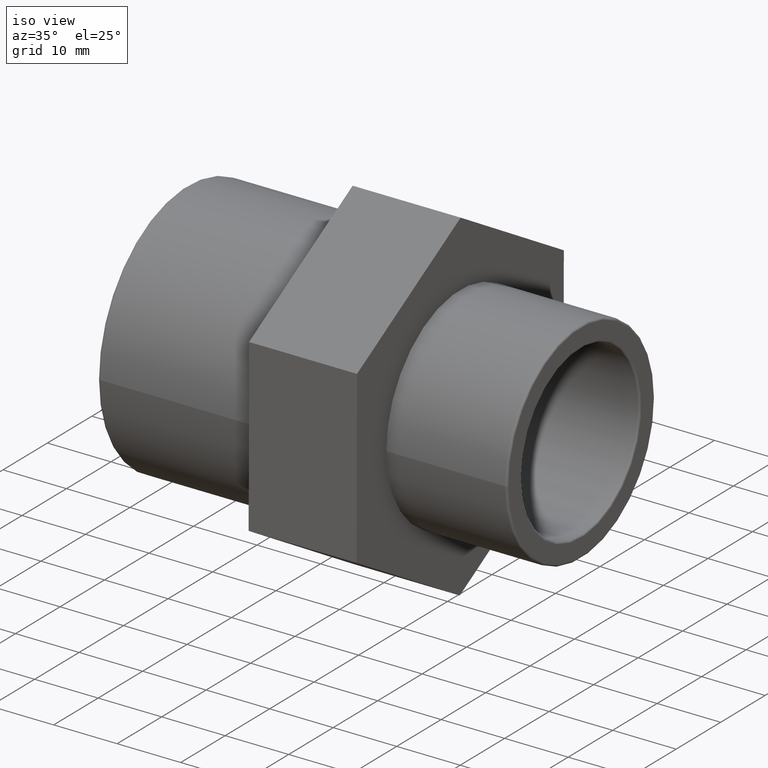
[diagram: clean part render]
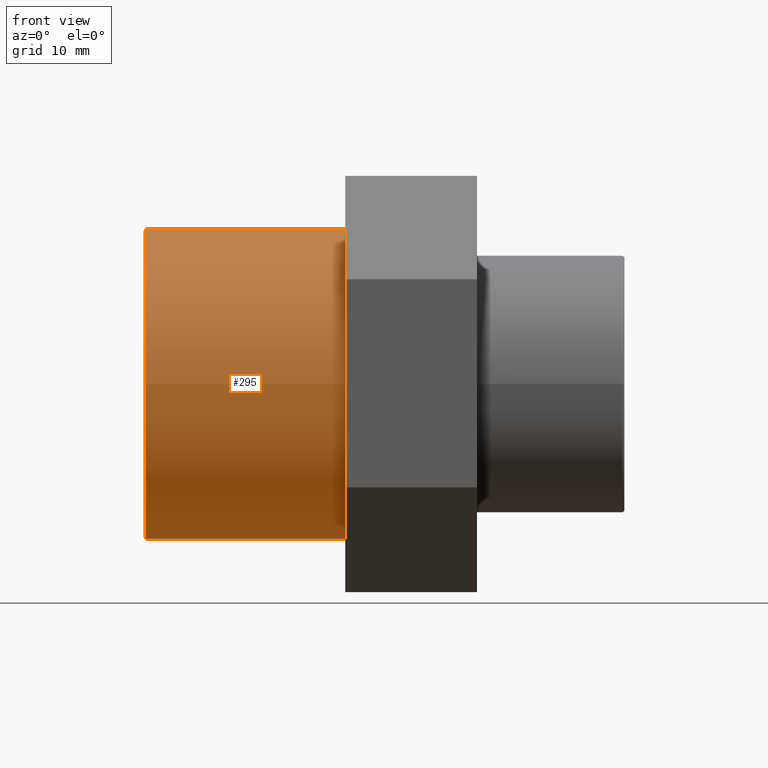
[diagram: tour spotlight — one face highlighted and labeled with its STEP entity id]
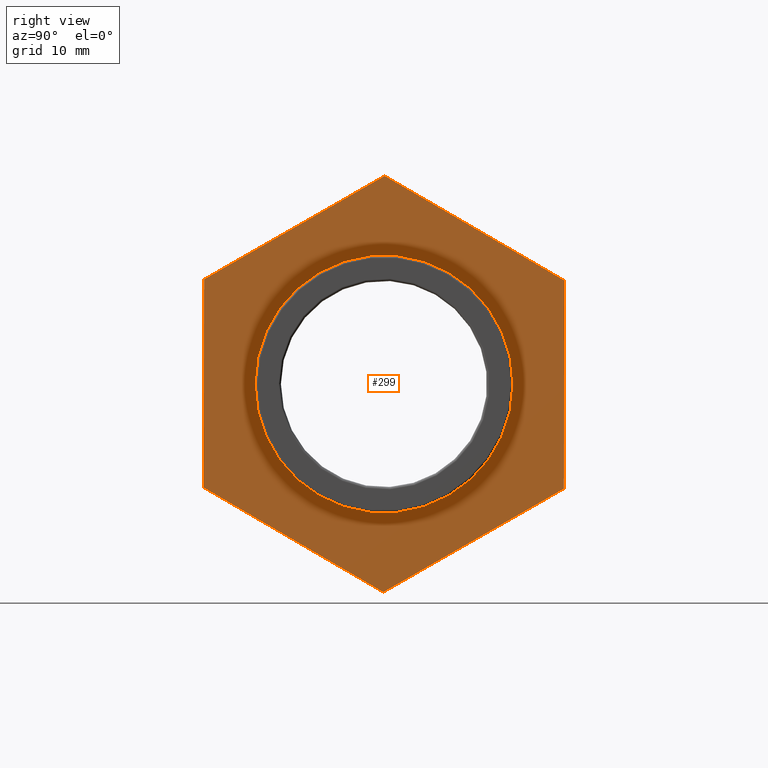
[diagram: tour spotlight — one face highlighted and labeled with its STEP entity id]
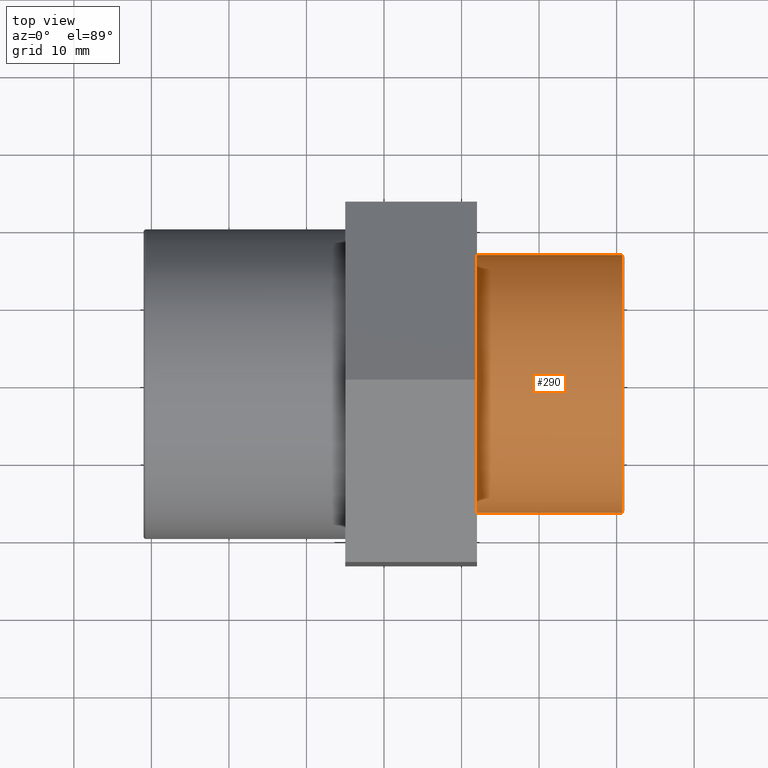
[diagram: tour spotlight — one face highlighted and labeled with its STEP entity id]
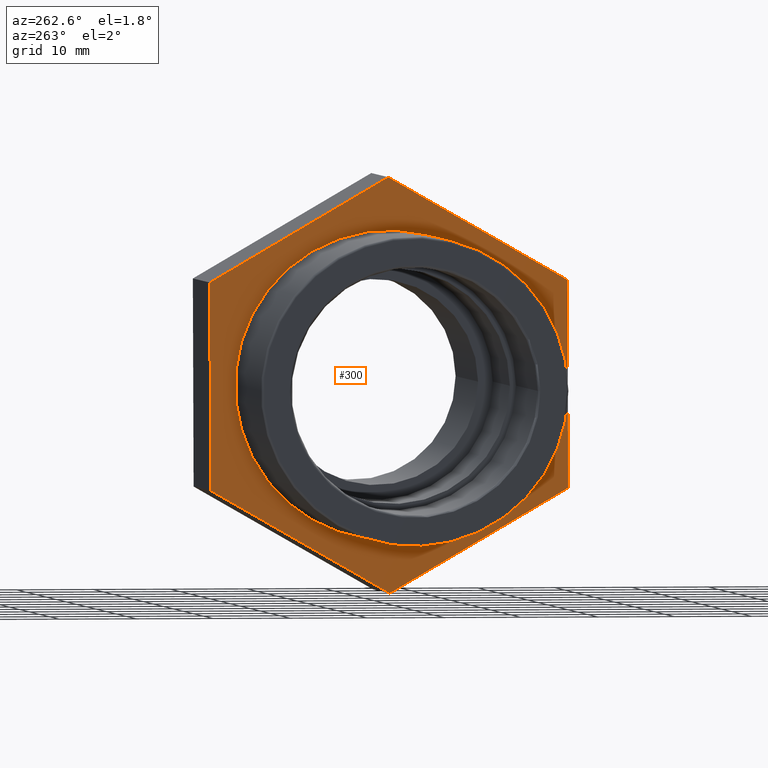
[diagram: tour spotlight — one face highlighted and labeled with its STEP entity id]
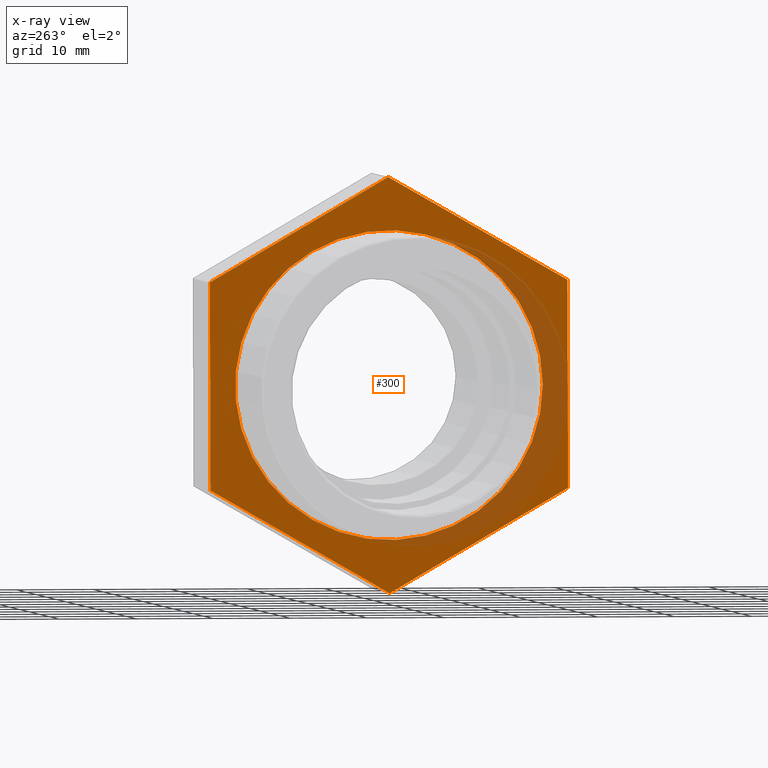
[diagram: x-ray of the same camera — body ghosted, this tour face saturated]
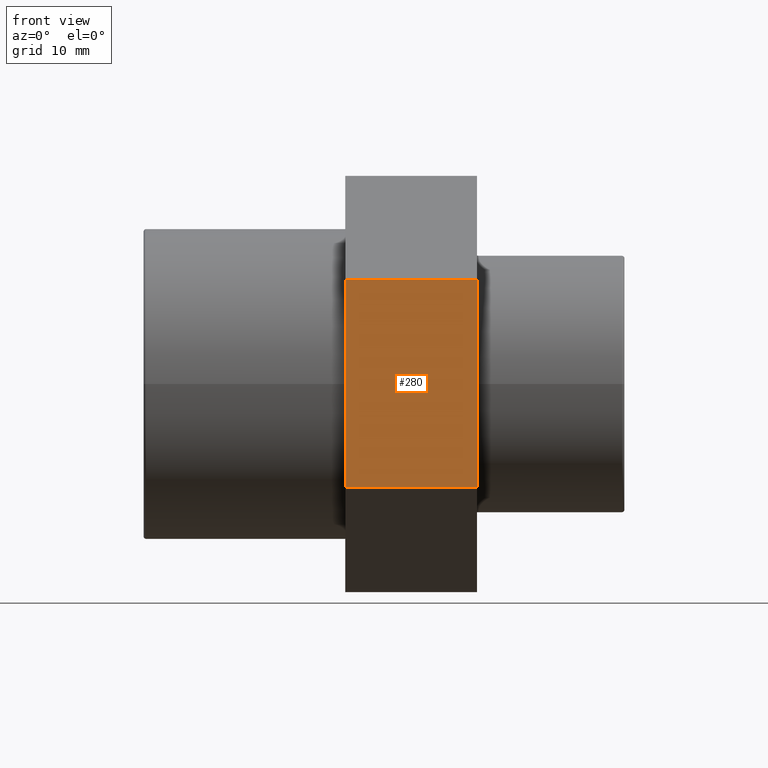
[diagram: tour spotlight — one face highlighted and labeled with its STEP entity id]
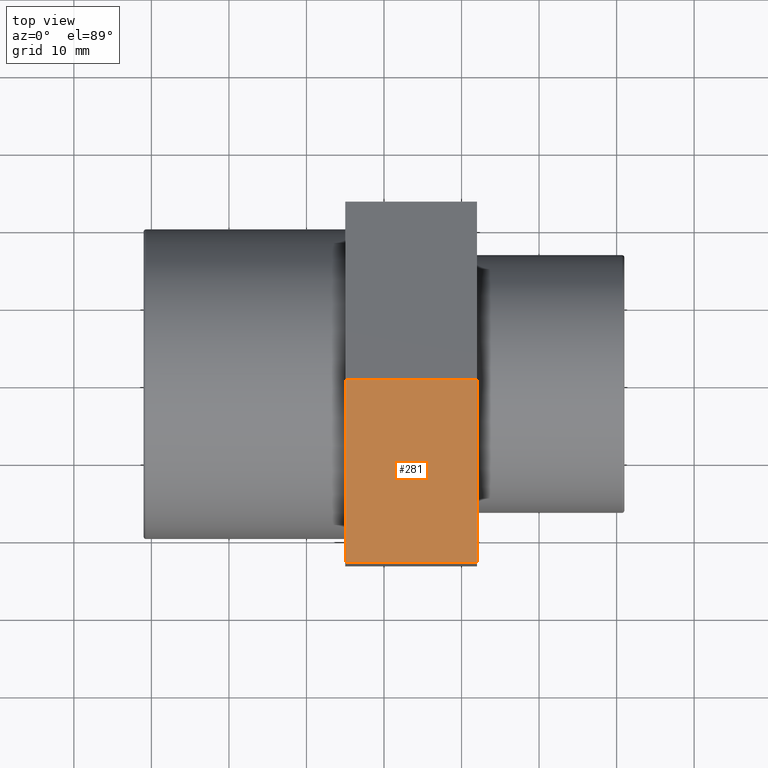
[diagram: tour spotlight — one face highlighted and labeled with its STEP entity id]
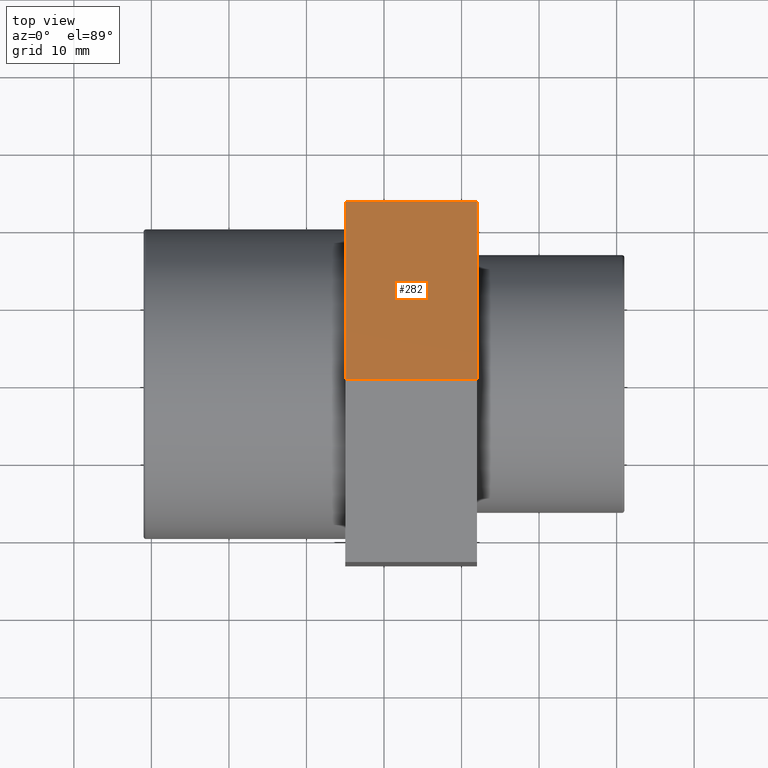
[diagram: tour spotlight — one face highlighted and labeled with its STEP entity id]
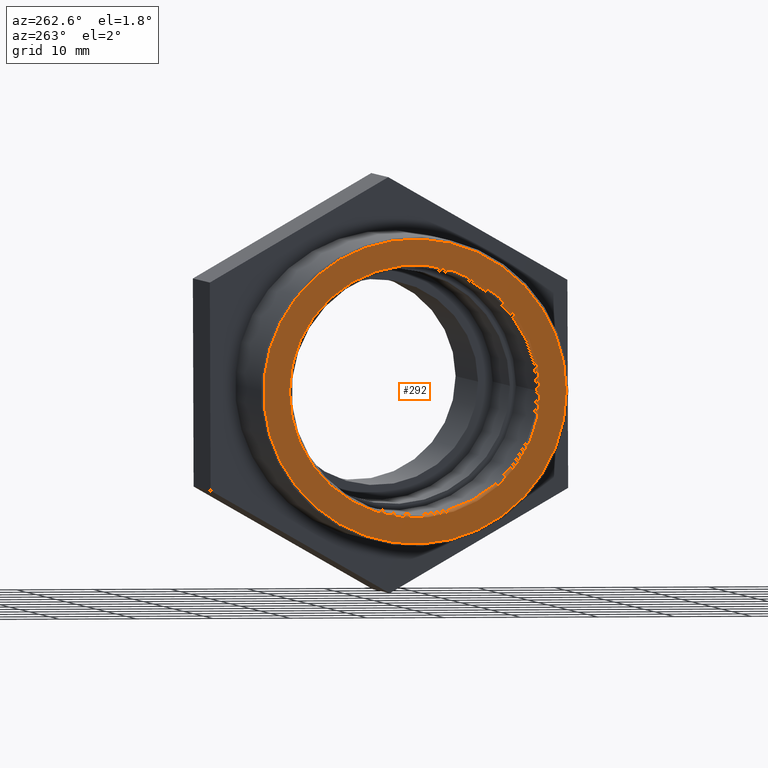
[diagram: tour spotlight — one face highlighted and labeled with its STEP entity id]
A machine part: a face-by-face anatomy tour. The part has 21 B-rep faces; the first image is the clean iso view, then the 8 largest visible faces are spotlighted one at a time (largest first), each with its STEP entity span.

Face 1 — front view, entity #295. In plain terms, the highlighted cylindrical surface (bore or boss wall) has radius 20 mm, axis along (-1, -0, 0).
Definition (entity closure, byte-faithful):
#18=CYLINDRICAL_SURFACE('',#329,20.);
#29=FACE_BOUND('',#99,.T.);
#45=CIRCLE('',#328,20.);
#46=CIRCLE('',#330,20.);
#68=FACE_OUTER_BOUND('',#98,.T.);
#98=EDGE_LOOP('',(#246));
#99=EDGE_LOOP('',(#247));
#168=VERTEX_POINT('',#494);
#169=VERTEX_POINT('',#497);
#200=EDGE_CURVE('',#168,#168,#45,.T.);
#201=EDGE_CURVE('',#169,#169,#46,.T.);
#246=ORIENTED_EDGE('',*,*,#201,.T.);
#247=ORIENTED_EDGE('',*,*,#200,.F.);
#295=ADVANCED_FACE('',(#68,#29),#18,.T.);
#328=AXIS2_PLACEMENT_3D('',#495,#408,#409);
#329=AXIS2_PLACEMENT_3D('',#496,#410,#411);
#330=AXIS2_PLACEMENT_3D('',#498,#412,#413);
#408=DIRECTION('center_axis',(-1.,-6.73555739531044E-16,0.));
#409=DIRECTION('ref_axis',(-6.73072708679001E-16,1.,6.12323399573677E-17));
#410=DIRECTION('center_axis',(-1.,-6.73555739531044E-16,0.));
#411=DIRECTION('ref_axis',(6.93889390390723E-16,-1.,0.));
#412=DIRECTION('center_axis',(-1.,-6.73555739531044E-16,0.));
#413=DIRECTION('ref_axis',(0.,0.,1.));
#494=CARTESIAN_POINT('',(-30.68,-20.,1.22464679914735E-15));
#495=CARTESIAN_POINT('Origin',(-30.68,-1.49700824727773E-14,0.));
#496=CARTESIAN_POINT('Origin',(-18.,-6.42939569552361E-15,0.));
#497=CARTESIAN_POINT('',(-5.,-20.,0.));
#498=CARTESIAN_POINT('Origin',(-5.00000000000001,2.32682891837996E-15,0.));

Face 2 — right view, entity #299. In plain terms, the highlighted planar face has unit normal (1, 0, 0).
Definition (entity closure, byte-faithful):
#33=FACE_BOUND('',#107,.T.);
#40=CIRCLE('',#319,16.6245);
#72=FACE_OUTER_BOUND('',#106,.T.);
#106=EDGE_LOOP('',(#254,#255,#256,#257,#258,#259));
#107=EDGE_LOOP('',(#260));
#110=LINE('',#432,#128);
#114=LINE('',#440,#132);
#117=LINE('',#446,#135);
#120=LINE('',#453,#138);
#124=LINE('',#460,#142);
#126=LINE('',#463,#144);
#128=VECTOR('',#342,26.8467875173176);
#132=VECTOR('',#348,26.8467875173176);
#135=VECTOR('',#353,26.8467875173176);
#138=VECTOR('',#358,26.8467875173176);
#142=VECTOR('',#364,26.8467875173176);
#144=VECTOR('',#368,26.8467875173176);
#146=VERTEX_POINT('',#430);
#147=VERTEX_POINT('',#431);
#150=VERTEX_POINT('',#439);
#152=VERTEX_POINT('',#445);
#154=VERTEX_POINT('',#451);
#155=VERTEX_POINT('',#452);
#163=VERTEX_POINT('',#480);
#172=EDGE_CURVE('',#146,#147,#110,.T.);
#176=EDGE_CURVE('',#147,#150,#114,.T.);
#179=EDGE_CURVE('',#150,#152,#117,.T.);
#182=EDGE_CURVE('',#154,#155,#120,.T.);
#186=EDGE_CURVE('',#155,#146,#124,.T.);
#188=EDGE_CURVE('',#152,#154,#126,.T.);
#195=EDGE_CURVE('',#163,#163,#40,.T.);
#254=ORIENTED_EDGE('',*,*,#186,.F.);
#255=ORIENTED_EDGE('',*,*,#182,.F.);
#256=ORIENTED_EDGE('',*,*,#188,.F.);
#257=ORIENTED_EDGE('',*,*,#179,.F.);
#258=ORIENTED_EDGE('',*,*,#176,.F.);
#259=ORIENTED_EDGE('',*,*,#172,.F.);
#260=ORIENTED_EDGE('',*,*,#195,.T.);
#278=PLANE('',#336);
#299=ADVANCED_FACE('',(#72,#33),#278,.T.);
#319=AXIS2_PLACEMENT_3D('',#481,#390,#391);
#336=AXIS2_PLACEMENT_3D('',#506,#424,#425);
#342=DIRECTION('',(-2.43778272755251E-18,0.00361927392861323,0.999993450406666));
#348=DIRECTION('',(-5.84531452177392E-16,0.867829368634533,0.496862342037901));
#353=DIRECTION('',(-5.8209366944984E-16,0.864210094705921,-0.503131108368766));
#358=DIRECTION('',(5.84531452177392E-16,-0.867829368634533,-0.4968623420379));
#364=DIRECTION('',(5.82093669449841E-16,-0.864210094705921,0.503131108368766));
#368=DIRECTION('',(2.43778272755173E-18,-0.00361927392861207,-0.999993450406666));
#390=DIRECTION('center_axis',(-1.,-6.73555739531044E-16,0.));
#391=DIRECTION('ref_axis',(0.,0.,1.));
#424=DIRECTION('center_axis',(1.,6.73555739531044E-16,0.));
#425=DIRECTION('ref_axis',(0.,0.,-1.));
#430=CARTESIAN_POINT('',(12.,-23.2984306610192,-13.3391577220483));
#431=CARTESIAN_POINT('',(12.,-23.2012647828908,13.5074539597288));
#432=CARTESIAN_POINT('',(12.,-23.2255562524229,6.79580103928451));
#439=CARTESIAN_POINT('',(12.,0.0971658781284368,26.8466116817771));
#440=CARTESIAN_POINT('',(12.,-5.72744178712638,23.511822251265));
#445=CARTESIAN_POINT('',(12.,23.2984306610192,13.3391577220483));
#446=CARTESIAN_POINT('',(12.,17.4981144652965,16.7160212119805));
#451=CARTESIAN_POINT('',(12.,23.2012647828908,-13.5074539597288));
#452=CARTESIAN_POINT('',(12.,-0.0971658781284168,-26.8466116817771));
#453=CARTESIAN_POINT('',(12.,5.72744178712639,-23.511822251265));
#460=CARTESIAN_POINT('',(12.,-17.4981144652965,-16.7160212119805));
#463=CARTESIAN_POINT('',(12.,23.249847721955,-0.0841481188402328));
#480=CARTESIAN_POINT('',(12.,-16.6245,0.));
#481=CARTESIAN_POINT('Origin',(12.,1.37772764904077E-14,0.));
#506=CARTESIAN_POINT('Origin',(12.,-23.25,0.));

Face 3 — top view, entity #290. In plain terms, the highlighted cylindrical surface (bore or boss wall) has radius 16.6245 mm, axis along (-1, -0, 0).
Definition (entity closure, byte-faithful):
#16=CYLINDRICAL_SURFACE('',#318,16.6245);
#24=FACE_BOUND('',#89,.T.);
#39=CIRCLE('',#317,16.6245);
#40=CIRCLE('',#319,16.6245);
#63=FACE_OUTER_BOUND('',#88,.T.);
#88=EDGE_LOOP('',(#236));
#89=EDGE_LOOP('',(#237));
#162=VERTEX_POINT('',#477);
#163=VERTEX_POINT('',#480);
#194=EDGE_CURVE('',#162,#162,#39,.T.);
#195=EDGE_CURVE('',#163,#163,#40,.T.);
#236=ORIENTED_EDGE('',*,*,#195,.F.);
#237=ORIENTED_EDGE('',*,*,#194,.F.);
#290=ADVANCED_FACE('',(#63,#24),#16,.T.);
#317=AXIS2_PLACEMENT_3D('',#478,#386,#387);
#318=AXIS2_PLACEMENT_3D('',#479,#388,#389);
#319=AXIS2_PLACEMENT_3D('',#481,#390,#391);
#386=DIRECTION('center_axis',(1.,6.73555739531044E-16,0.));
#387=DIRECTION('ref_axis',(-6.7199730429731E-16,1.,6.12323399573677E-17));
#388=DIRECTION('center_axis',(-1.,-6.73555739531044E-16,0.));
#389=DIRECTION('ref_axis',(6.93889390390723E-16,-1.,0.));
#390=DIRECTION('center_axis',(-1.,-6.73555739531044E-16,0.));
#391=DIRECTION('ref_axis',(0.,0.,1.));
#477=CARTESIAN_POINT('',(30.68,-16.6245,-3.05387110686378E-15));
#478=CARTESIAN_POINT('Origin',(30.68,2.63592977048476E-14,0.));
#479=CARTESIAN_POINT('Origin',(21.5,2.01760560159527E-14,0.));
#480=CARTESIAN_POINT('',(12.,-16.6245,0.));
#481=CARTESIAN_POINT('Origin',(12.,1.37772764904077E-14,0.));

Face 4 — auxiliary view, entity #300. An x-ray twin of the same camera follows (body ghosted, this face saturated) — the face is partly hidden behind the body. In plain terms, the highlighted planar face has unit normal (-1, -0, 0).
Definition (entity closure, byte-faithful):
#34=FACE_BOUND('',#109,.T.);
#46=CIRCLE('',#330,20.);
#73=FACE_OUTER_BOUND('',#108,.T.);
#108=EDGE_LOOP('',(#261,#262,#263,#264,#265,#266));
#109=EDGE_LOOP('',(#267));
#112=LINE('',#436,#130);
#116=LINE('',#443,#134);
#119=LINE('',#449,#137);
#122=LINE('',#457,#140);
#125=LINE('',#461,#143);
#127=LINE('',#464,#145);
#130=VECTOR('',#344,26.8467875173176);
#134=VECTOR('',#350,26.8467875173176);
#137=VECTOR('',#355,26.8467875173176);
#140=VECTOR('',#360,26.8467875173176);
#143=VECTOR('',#365,26.8467875173176);
#145=VECTOR('',#369,26.8467875173176);
#148=VERTEX_POINT('',#433);
#149=VERTEX_POINT('',#435);
#151=VERTEX_POINT('',#441);
#153=VERTEX_POINT('',#447);
#156=VERTEX_POINT('',#454);
#157=VERTEX_POINT('',#456);
#169=VERTEX_POINT('',#497);
#174=EDGE_CURVE('',#148,#149,#112,.T.);
#178=EDGE_CURVE('',#151,#148,#116,.T.);
#181=EDGE_CURVE('',#153,#151,#119,.T.);
#184=EDGE_CURVE('',#156,#157,#122,.T.);
#187=EDGE_CURVE('',#149,#156,#125,.T.);
#189=EDGE_CURVE('',#157,#153,#127,.T.);
#201=EDGE_CURVE('',#169,#169,#46,.T.);
#261=ORIENTED_EDGE('',*,*,#174,.F.);
#262=ORIENTED_EDGE('',*,*,#178,.F.);
#263=ORIENTED_EDGE('',*,*,#181,.F.);
#264=ORIENTED_EDGE('',*,*,#189,.F.);
#265=ORIENTED_EDGE('',*,*,#184,.F.);
#266=ORIENTED_EDGE('',*,*,#187,.F.);
#267=ORIENTED_EDGE('',*,*,#201,.F.);
#279=PLANE('',#337);
#300=ADVANCED_FACE('',(#73,#34),#279,.T.);
#330=AXIS2_PLACEMENT_3D('',#498,#412,#413);
#337=AXIS2_PLACEMENT_3D('',#507,#426,#427);
#344=DIRECTION('',(2.43778272755251E-18,-0.00361927392861323,-0.999993450406666));
#350=DIRECTION('',(5.84531452177392E-16,-0.867829368634533,-0.496862342037901));
#355=DIRECTION('',(5.8209366944984E-16,-0.864210094705921,0.503131108368766));
#360=DIRECTION('',(-5.84531452177392E-16,0.867829368634533,0.4968623420379));
#365=DIRECTION('',(-5.82093669449841E-16,0.864210094705921,-0.503131108368766));
#369=DIRECTION('',(-2.43778272755173E-18,0.00361927392861207,0.999993450406666));
#412=DIRECTION('center_axis',(-1.,-6.73555739531044E-16,0.));
#413=DIRECTION('ref_axis',(0.,0.,1.));
#426=DIRECTION('center_axis',(-1.,-6.73555739531044E-16,0.));
#427=DIRECTION('ref_axis',(0.,0.,1.));
#433=CARTESIAN_POINT('',(-5.,-23.2012647828908,13.5074539597288));
#435=CARTESIAN_POINT('',(-5.,-23.2984306610192,-13.3391577220483));
#436=CARTESIAN_POINT('',(-5.,-23.2012647828908,13.5074539597288));
#441=CARTESIAN_POINT('',(-5.00000000000001,0.0971658781284249,26.8466116817771));
#443=CARTESIAN_POINT('',(-5.00000000000001,0.0971658781284249,26.8466116817771));
#447=CARTESIAN_POINT('',(-5.00000000000003,23.2984306610192,13.3391577220483));
#449=CARTESIAN_POINT('',(-5.00000000000003,23.2984306610192,13.3391577220483));
#454=CARTESIAN_POINT('',(-5.00000000000001,-0.0971658781284286,-26.8466116817771));
#456=CARTESIAN_POINT('',(-5.00000000000003,23.2012647828908,-13.5074539597288));
#457=CARTESIAN_POINT('',(-5.00000000000001,-0.0971658781284286,-26.8466116817771));
#461=CARTESIAN_POINT('',(-5.,-23.2984306610192,-13.3391577220483));
#464=CARTESIAN_POINT('',(-5.00000000000003,23.2012647828908,-13.5074539597288));
#497=CARTESIAN_POINT('',(-5.,-20.,0.));
#498=CARTESIAN_POINT('Origin',(-5.00000000000001,2.32682891837996E-15,0.));
#507=CARTESIAN_POINT('Origin',(-5.,-20.,0.));

Face 5 — front view, entity #280. In plain terms, the highlighted planar face has unit normal (0, -1, 0.0036).
Definition (entity closure, byte-faithful):
#53=FACE_OUTER_BOUND('',#74,.T.);
#74=EDGE_LOOP('',(#204,#205,#206,#207));
#110=LINE('',#432,#128);
#111=LINE('',#434,#129);
#112=LINE('',#436,#130);
#113=LINE('',#437,#131);
#128=VECTOR('',#342,26.8467875173176);
#129=VECTOR('',#343,17.);
#130=VECTOR('',#344,26.8467875173176);
#131=VECTOR('',#345,17.);
#146=VERTEX_POINT('',#430);
#147=VERTEX_POINT('',#431);
#148=VERTEX_POINT('',#433);
#149=VERTEX_POINT('',#435);
#172=EDGE_CURVE('',#146,#147,#110,.T.);
#173=EDGE_CURVE('',#148,#147,#111,.T.);
#174=EDGE_CURVE('',#148,#149,#112,.T.);
#175=EDGE_CURVE('',#149,#146,#113,.T.);
#204=ORIENTED_EDGE('',*,*,#172,.T.);
#205=ORIENTED_EDGE('',*,*,#173,.F.);
#206=ORIENTED_EDGE('',*,*,#174,.T.);
#207=ORIENTED_EDGE('',*,*,#175,.T.);
#268=PLANE('',#303);
#280=ADVANCED_FACE('',(#53),#268,.T.);
#303=AXIS2_PLACEMENT_3D('',#429,#340,#341);
#340=DIRECTION('center_axis',(6.96605962739338E-16,-0.999993450406666,0.00361927392861323));
#341=DIRECTION('ref_axis',(0.,-0.00361927392861325,-0.999993450406666));
#342=DIRECTION('',(-2.43778272755251E-18,0.00361927392861323,0.999993450406666));
#343=DIRECTION('',(1.,6.9661052525499E-16,0.));
#344=DIRECTION('',(2.43778272755251E-18,-0.00361927392861323,-0.999993450406666));
#345=DIRECTION('',(1.,6.9661052525499E-16,0.));
#429=CARTESIAN_POINT('Origin',(-5.,-23.2012647828908,13.5074539597288));
#430=CARTESIAN_POINT('',(12.,-23.2984306610192,-13.3391577220483));
#431=CARTESIAN_POINT('',(12.,-23.2012647828908,13.5074539597288));
#432=CARTESIAN_POINT('',(12.,-23.2255562524229,6.79580103928451));
#433=CARTESIAN_POINT('',(-5.,-23.2012647828908,13.5074539597288));
#434=CARTESIAN_POINT('',(-5.,-23.2012647828908,13.5074539597288));
#435=CARTESIAN_POINT('',(-5.,-23.2984306610192,-13.3391577220483));
#436=CARTESIAN_POINT('',(-5.,-23.2012647828908,13.5074539597288));
#437=CARTESIAN_POINT('',(-5.,-23.2984306610192,-13.3391577220483));

Face 6 — top view, entity #281. In plain terms, the highlighted planar face has unit normal (0, -0.4969, 0.8678).
Definition (entity closure, byte-faithful):
#54=FACE_OUTER_BOUND('',#75,.T.);
#75=EDGE_LOOP('',(#208,#209,#210,#211));
#111=LINE('',#434,#129);
#114=LINE('',#440,#132);
#115=LINE('',#442,#133);
#116=LINE('',#443,#134);
#129=VECTOR('',#343,17.);
#132=VECTOR('',#348,26.8467875173176);
#133=VECTOR('',#349,17.);
#134=VECTOR('',#350,26.8467875173176);
#147=VERTEX_POINT('',#431);
#148=VERTEX_POINT('',#433);
#150=VERTEX_POINT('',#439);
#151=VERTEX_POINT('',#441);
#173=EDGE_CURVE('',#148,#147,#111,.T.);
#176=EDGE_CURVE('',#147,#150,#114,.T.);
#177=EDGE_CURVE('',#151,#150,#115,.T.);
#178=EDGE_CURVE('',#151,#148,#116,.T.);
#208=ORIENTED_EDGE('',*,*,#176,.T.);
#209=ORIENTED_EDGE('',*,*,#177,.F.);
#210=ORIENTED_EDGE('',*,*,#178,.T.);
#211=ORIENTED_EDGE('',*,*,#173,.T.);
#269=PLANE('',#304);
#281=ADVANCED_FACE('',(#54),#269,.T.);
#304=AXIS2_PLACEMENT_3D('',#438,#346,#347);
#343=DIRECTION('',(1.,6.9661052525499E-16,0.));
#346=DIRECTION('center_axis',(3.46119537066447E-16,-0.496862342037901,0.867829368634533));
#347=DIRECTION('ref_axis',(6.21724893790088E-16,-0.867829368634533,-0.496862342037901));
#348=DIRECTION('',(-5.84531452177392E-16,0.867829368634533,0.496862342037901));
#349=DIRECTION('',(1.,6.9661052525499E-16,0.));
#350=DIRECTION('',(5.84531452177392E-16,-0.867829368634533,-0.496862342037901));
#431=CARTESIAN_POINT('',(12.,-23.2012647828908,13.5074539597288));
#433=CARTESIAN_POINT('',(-5.,-23.2012647828908,13.5074539597288));
#434=CARTESIAN_POINT('',(-5.,-23.2012647828908,13.5074539597288));
#438=CARTESIAN_POINT('Origin',(-5.00000000000001,0.0971658781284249,26.8466116817771));
#439=CARTESIAN_POINT('',(12.,0.0971658781284368,26.8466116817771));
#440=CARTESIAN_POINT('',(12.,-5.72744178712638,23.511822251265));
#441=CARTESIAN_POINT('',(-5.00000000000001,0.0971658781284249,26.8466116817771));
#442=CARTESIAN_POINT('',(-5.00000000000001,0.0971658781284249,26.8466116817771));
#443=CARTESIAN_POINT('',(-5.00000000000001,0.0971658781284249,26.8466116817771));

Face 7 — top view, entity #282. In plain terms, the highlighted planar face has unit normal (-0, 0.5031, 0.8642).
Definition (entity closure, byte-faithful):
#55=FACE_OUTER_BOUND('',#76,.T.);
#76=EDGE_LOOP('',(#212,#213,#214,#215));
#115=LINE('',#442,#133);
#117=LINE('',#446,#135);
#118=LINE('',#448,#136);
#119=LINE('',#449,#137);
#133=VECTOR('',#349,17.);
#135=VECTOR('',#353,26.8467875173176);
#136=VECTOR('',#354,17.);
#137=VECTOR('',#355,26.8467875173176);
#150=VERTEX_POINT('',#439);
#151=VERTEX_POINT('',#441);
#152=VERTEX_POINT('',#445);
#153=VERTEX_POINT('',#447);
#177=EDGE_CURVE('',#151,#150,#115,.T.);
#179=EDGE_CURVE('',#150,#152,#117,.T.);
#180=EDGE_CURVE('',#153,#152,#118,.T.);
#181=EDGE_CURVE('',#153,#151,#119,.T.);
#212=ORIENTED_EDGE('',*,*,#179,.T.);
#213=ORIENTED_EDGE('',*,*,#180,.F.);
#214=ORIENTED_EDGE('',*,*,#181,.T.);
#215=ORIENTED_EDGE('',*,*,#177,.T.);
#270=PLANE('',#305);
#282=ADVANCED_FACE('',(#55),#270,.T.);
#305=AXIS2_PLACEMENT_3D('',#444,#351,#352);
#349=DIRECTION('',(1.,6.9661052525499E-16,0.));
#351=DIRECTION('center_axis',(-3.50486425672891E-16,0.503131108368766,0.864210094705921));
#352=DIRECTION('ref_axis',(6.21724893790088E-16,-0.864210094705921,0.503131108368766));
#353=DIRECTION('',(-5.8209366944984E-16,0.864210094705921,-0.503131108368766));
#354=DIRECTION('',(1.,6.9661052525499E-16,0.));
#355=DIRECTION('',(5.8209366944984E-16,-0.864210094705921,0.503131108368766));
#439=CARTESIAN_POINT('',(12.,0.0971658781284368,26.8466116817771));
#441=CARTESIAN_POINT('',(-5.00000000000001,0.0971658781284249,26.8466116817771));
#442=CARTESIAN_POINT('',(-5.00000000000001,0.0971658781284249,26.8466116817771));
#444=CARTESIAN_POINT('Origin',(-5.00000000000003,23.2984306610192,13.3391577220483));
#445=CARTESIAN_POINT('',(12.,23.2984306610192,13.3391577220483));
#446=CARTESIAN_POINT('',(12.,17.4981144652965,16.7160212119805));
#447=CARTESIAN_POINT('',(-5.00000000000003,23.2984306610192,13.3391577220483));
#448=CARTESIAN_POINT('',(-5.00000000000003,23.2984306610192,13.3391577220483));
#449=CARTESIAN_POINT('',(-5.00000000000003,23.2984306610192,13.3391577220483));

Face 8 — auxiliary view, entity #292. In plain terms, the highlighted planar face has unit normal (-1, -0, 0).
Definition (entity closure, byte-faithful):
#26=FACE_BOUND('',#93,.T.);
#41=CIRCLE('',#321,16.32);
#43=CIRCLE('',#324,19.68);
#65=FACE_OUTER_BOUND('',#92,.T.);
#92=EDGE_LOOP('',(#240));
#93=EDGE_LOOP('',(#241));
#164=VERTEX_POINT('',#483);
#166=VERTEX_POINT('',#488);
#196=EDGE_CURVE('',#164,#164,#41,.T.);
#198=EDGE_CURVE('',#166,#166,#43,.T.);
#240=ORIENTED_EDGE('',*,*,#198,.F.);
#241=ORIENTED_EDGE('',*,*,#196,.F.);
#275=PLANE('',#323);
#292=ADVANCED_FACE('',(#65,#26),#275,.T.);
#321=AXIS2_PLACEMENT_3D('',#484,#394,#395);
#323=AXIS2_PLACEMENT_3D('',#487,#398,#399);
#324=AXIS2_PLACEMENT_3D('',#489,#400,#401);
#394=DIRECTION('center_axis',(-1.,-6.73555739531044E-16,0.));
#395=DIRECTION('ref_axis',(-6.73555739531044E-16,1.,6.12323399573677E-17));
#398=DIRECTION('center_axis',(-1.,-6.73555739531044E-16,0.));
#399=DIRECTION('ref_axis',(0.,0.,1.));
#400=DIRECTION('center_axis',(1.,6.73555739531044E-16,0.));
#401=DIRECTION('ref_axis',(-6.73555739531044E-16,1.,6.12323399573677E-17));
#483=CARTESIAN_POINT('',(-31.,-16.32,9.9931178810424E-16));
#484=CARTESIAN_POINT('Origin',(-31.,-1.51856203094272E-14,0.));
#487=CARTESIAN_POINT('Origin',(-31.,-16.,0.));
#488=CARTESIAN_POINT('',(-31.,-19.68,-3.61515735108299E-15));
#489=CARTESIAN_POINT('Origin',(-31.,-1.51856203094272E-14,0.));